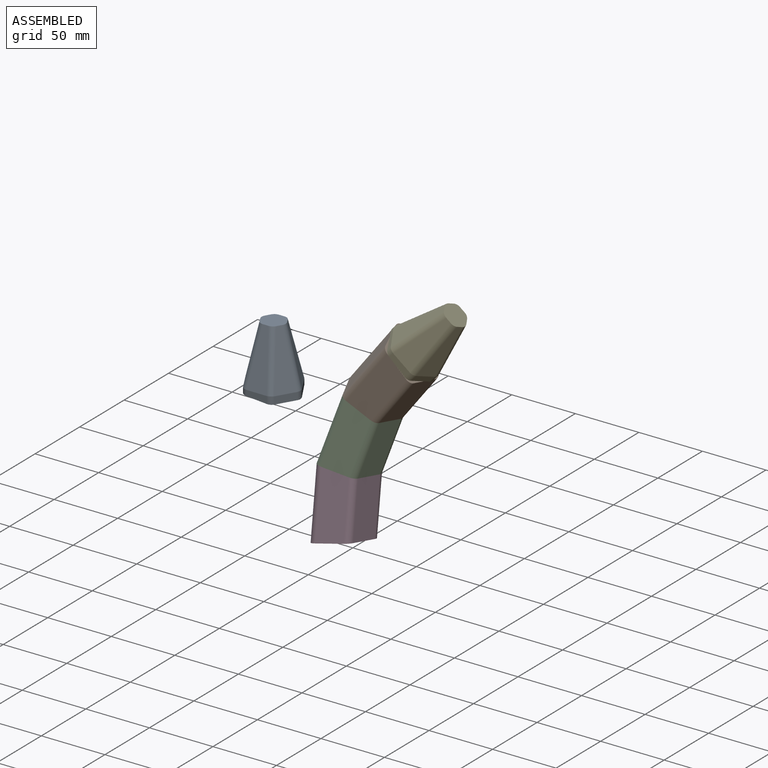
[diagram: assembled view]
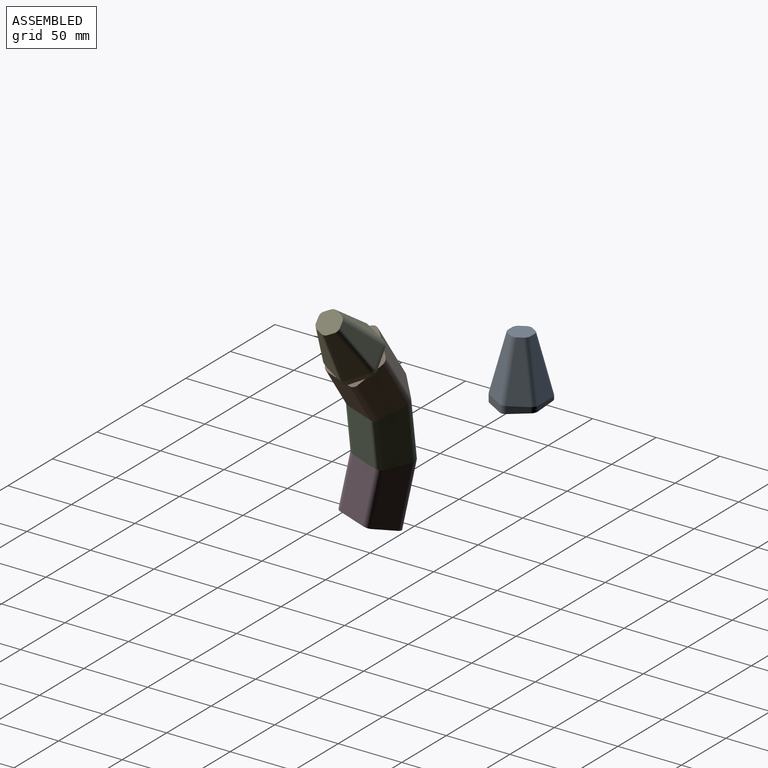
[diagram: assembled view, second angle]
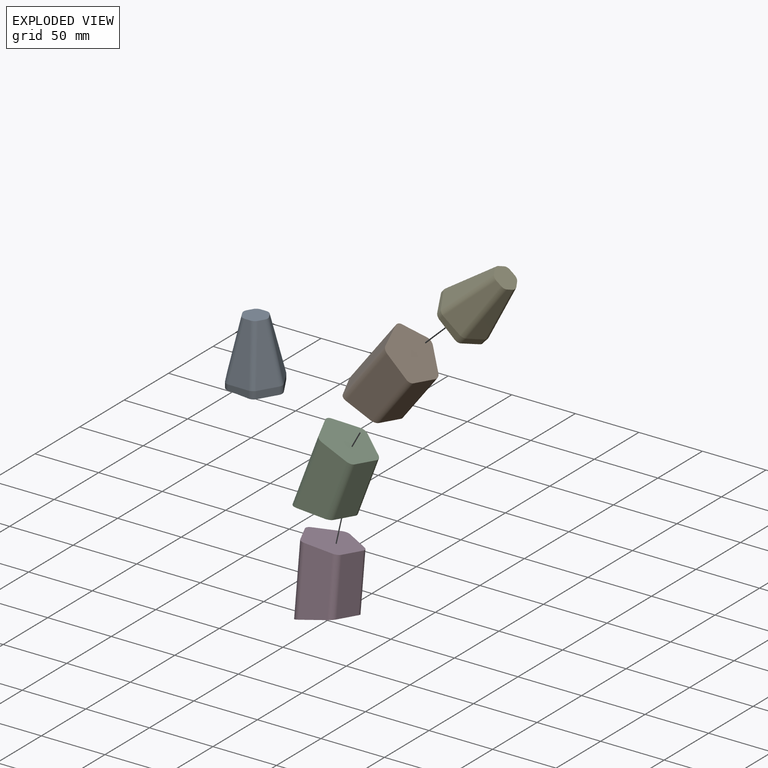
[diagram: exploded view]
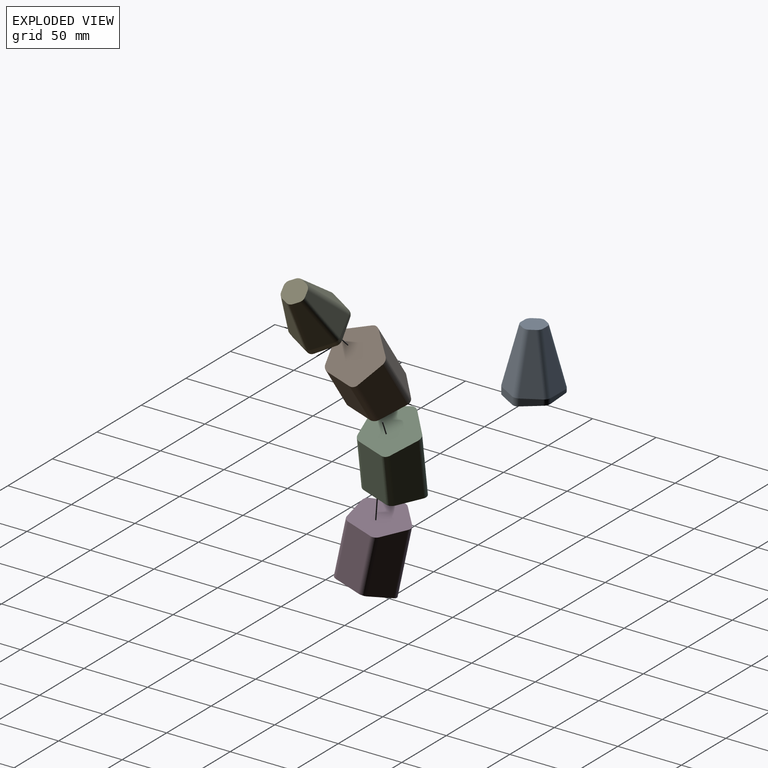
[diagram: exploded view, second angle]
ASSEMBLY  parts=5 mates=3
PART A: 26 faces, bbox 42.4x38.3x50.5 mm
  f0: plane 13.89x8.2mm, normal (0.86,-0.51,0), area 94.7mm2, adj f11,f14,f22,f25
  f1: plane 14.05x7.93mm, normal (0.87,0.49,0), area 81.3mm2, adj f12,f22,f24,f25
  f2: plane 16.13x3.98mm, normal (0.01,1,0), area 54.4mm2, adj f10,f20,f24,f25
  f3: plane 13.89x8.2mm, normal (-0.86,0.51,0), area 41mm2, adj f8,f18,f20,f25
  f4: plane 14.05x7.93mm, normal (-0.87,-0.49,0), area 54.4mm2, adj f7,f16,f18,f25
  f5: plane 16.13x5.65mm, normal (-0.01,-1,0), area 81.3mm2, adj f9,f14,f16,f25
  f6: plane 19x17.82mm, normal (0,0,1), area 265.9mm2, adj f7,f8,f9,f10,f11,f12,f13,f15
  f7: plane 44.45x14.18mm, normal (-0.85,-0.48,0.22), area 474.8mm2, adj f4,f6,f15,f16,f17,f18
  f8: plane 44.45x14.13mm, normal (-0.84,0.5,0.22), area 474.8mm2, adj f3,f6,f17,f18,f19,f20
  f9: plane 44.45x16.28mm, normal (-0.01,-0.97,0.22), area 474.8mm2, adj f5,f6,f13,f14,f15,f16
  f10: plane 44.45x16.28mm, normal (0.01,0.97,0.22), area 474.8mm2, adj f2,f6,f19,f20,f23,f24
  f11: plane 44.45x14.13mm, normal (0.84,-0.5,0.22), area 474.8mm2, adj f0,f6,f13,f14,f21,f22
  f12: plane 44.45x14.18mm, normal (0.85,0.48,0.22), area 474.8mm2, adj f1,f6,f21,f22,f23,f24
  f13: cylinder r=5.08mm len=44.69mm, axis (0.13,-0.22,-0.97), area 237.5mm2, adj f6,f9,f11,f14
  f14: cylinder r=5.08mm len=5.96mm, axis (0,0,-1), area 31.1mm2, adj f0,f5,f9,f11,f13,f25
  f15: cylinder r=5.08mm len=44.69mm, axis (-0.13,-0.22,-0.97), area 237.5mm2, adj f6,f7,f9,f16
  f16: cylinder r=5.08mm len=4.52mm, axis (0,0,-1), area 22.7mm2, adj f4,f5,f7,f9,f15,f25
  f17: cylinder r=5.08mm len=44.69mm, axis (0.26,0,0.97), area 237.5mm2, adj f6,f7,f8,f18
  f18: cylinder r=5.08mm len=5.08mm, axis (0,0,-1), area 14.2mm2, adj f3,f4,f7,f8,f17,f25
  f19: cylinder r=5.08mm len=44.69mm, axis (0.13,-0.22,0.97), area 237.5mm2, adj f6,f8,f10,f20
  f20: cylinder r=5.08mm len=4.42mm, axis (0,0,-1), area 14.2mm2, adj f2,f3,f8,f10,f19,f25
  f21: cylinder r=5.08mm len=44.69mm, axis (0.26,0,-0.97), area 237.5mm2, adj f6,f11,f12,f22
  f22: cylinder r=5.08mm len=5.96mm, axis (0,0,-1), area 31.1mm2, adj f0,f1,f11,f12,f21,f25
  f23: cylinder r=5.08mm len=44.69mm, axis (-0.13,-0.22,0.97), area 237.5mm2, adj f6,f10,f12,f24
  f24: cylinder r=5.08mm len=4.52mm, axis (0,0,-1), area 22.7mm2, adj f1,f2,f10,f12,f23,f25
  f25: plane 42.43x38.26mm, normal (-0.08,0.04,-1), area 1253.6mm2, adj f0,f1,f2,f3,f4,f5,f14,f16
PART B: 12 faces, bbox 43x41.6x57.8 mm
  f0: plane 43.18x19.14mm, normal (0.94,-0.33,0), area 876.5mm2, adj f5,f6,f10,f11
  f1: plane 51.23x16.11mm, normal (0.61,0.79,0), area 970.8mm2, adj f5,f6,f7,f11
  f2: plane 57.44x16.72mm, normal (-0.57,0.82,0), area 1123.2mm2, adj f5,f6,f7,f8
  f3: plane 57.44x19.46mm, normal (-0.96,-0.28,0), area 1123.2mm2, adj f5,f6,f8,f9
  f4: plane 51.23x20.29mm, normal (-0.03,-1,0), area 970.8mm2, adj f5,f6,f9,f10
  f5: plane 43x41.65mm, normal (0.16,-0.06,0.98), area 1325.8mm2, adj f0,f1,f2,f3,f4,f7,f8,f9
  f6: plane 43x41.65mm, normal (0.16,-0.06,-0.98), area 1325.8mm2, adj f0,f1,f2,f3,f4,f7,f8,f9
  f7: cylinder r=5.08mm len=53.23mm, axis (0,0,-1), area 333.9mm2, adj f1,f2,f5,f6
  f8: cylinder r=5.08mm len=57.78mm, axis (0,0,-1), area 368.1mm2, adj f2,f3,f5,f6
  f9: cylinder r=5.08mm len=53.23mm, axis (0,0,-1), area 333.9mm2, adj f3,f4,f5,f6
  f10: cylinder r=5.08mm len=44.42mm, axis (0,0,-1), area 278.4mm2, adj f0,f4,f5,f6
  f11: cylinder r=5.08mm len=44.42mm, axis (0,0,-1), area 278.4mm2, adj f0,f1,f5,f6
PART C: same geometry as B
PART D: same geometry as B
PART E: same geometry as A
PLACE A t=(-127.23,0,43.76)mm
PLACE B rot(axis=(-0.02,0.99,0.16),37.6deg) t=(-11.31,-37.63,102.59)mm
PLACE C rot(axis=(-0.29,0.87,0.4),20.5deg) t=(-34.39,-41.92,57.78)mm
PLACE D rot(axis=(-0.74,-0.1,0.67),15deg) t=(-40.95,-49.92,8.27)mm
PLACE E rot(axis=(0,0.99,0.14),42.7deg) t=(5.74,-36.19,118.26)mm
MATE fastened C.f5 <-> B.f6  axis (0.46,0.08,0.89) through (-22.81,-38.3,80.03)mm
MATE fastened C.f6 <-> D.f5  axis (-0.13,-0.16,-0.98) through (-37.66,-44.46,32.79)mm
MATE fastened B.f5 <-> E.f25  axis (0.73,0,0.69) through (7.18,-36.11,119.85)mm
